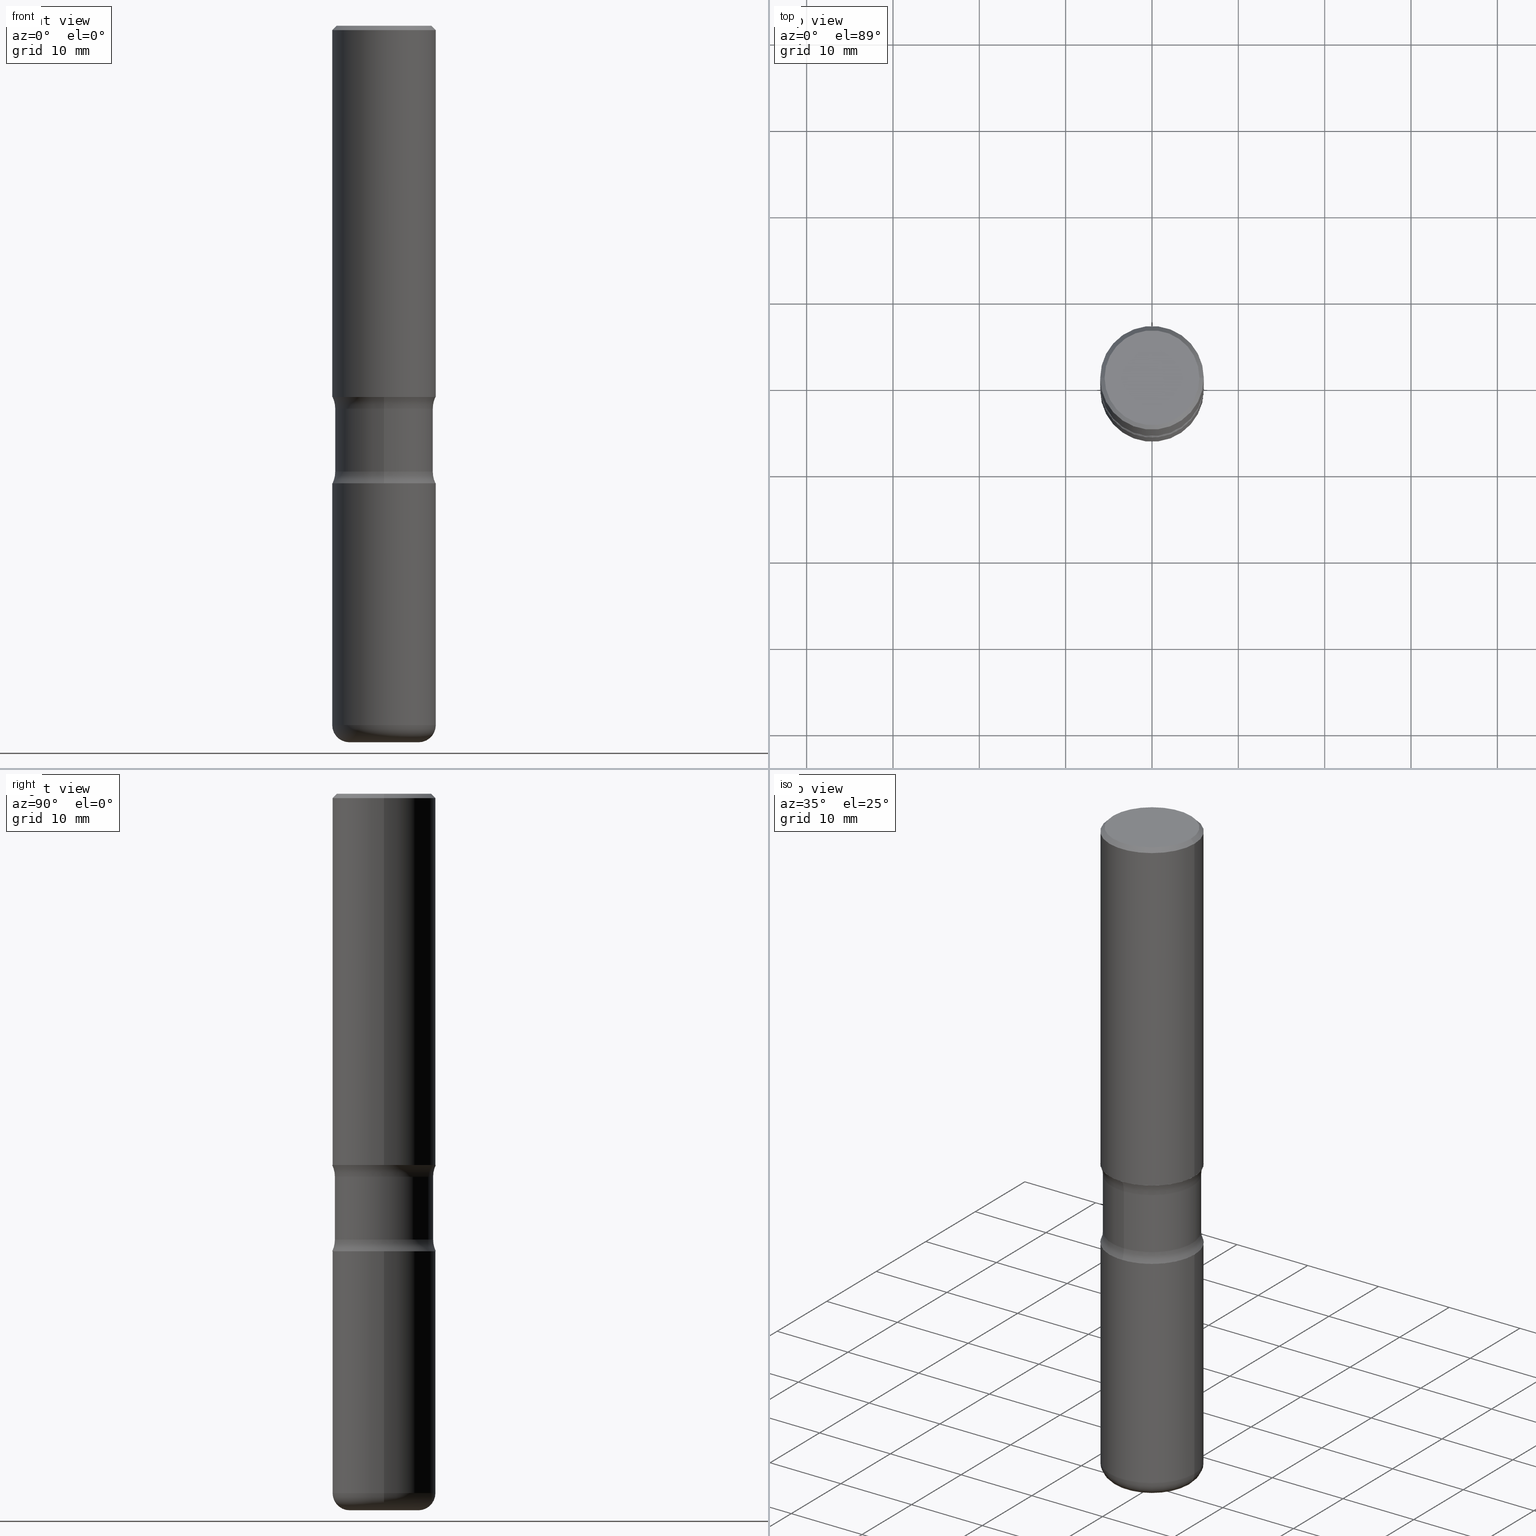
[diagram: canonical four-view strip — front | top / right | iso, engineering-drawing reading convention]
A machine part, canonical four-view strip (front | top / right | iso — engineering-drawing reading convention). The complete STEP part file that produces these views, byte-faithful:
ISO-10303-21;
HEADER;
FILE_DESCRIPTION (( 'STEP AP203' ),
    '1' );
FILE_NAME ('44745.STEP',
    '2024-03-02T02:41:08',
    ( '' ),
    ( '' ),
    'SwSTEP 2.0',
    'SolidWorks 2023',
    '' );
FILE_SCHEMA (( 'CONFIG_CONTROL_DESIGN' ));
ENDSEC;

DATA;
#1 = CARTESIAN_POINT ( 'NONE',  ( -0.2362000000000004374, -1.311977250786849481E-15, -1.692899999999999627 ) ) ;
#2 = AXIS2_PLACEMENT_3D ( 'NONE', #455, #66, #150 ) ;
#3 = AXIS2_PLACEMENT_3D ( 'NONE', #71, #399, #204 ) ;
#4 = CARTESIAN_POINT ( 'NONE',  ( 7.991058417971171713E-29, -1.140911357093774644E-14, -3.267700000000000049 ) ) ;
#5 = LINE ( 'NONE', #88, #352 ) ;
#6 = ORIENTED_EDGE ( 'NONE', *, *, #546, .F. ) ;
#7 = EDGE_CURVE ( 'NONE', #211, #544, #43, .T. ) ;
#8 = CARTESIAN_POINT ( 'NONE',  ( 4.973714950416923137E-29, -7.093372145566288471E-15, -2.032737582675856913 ) ) ;
#9 = EDGE_CURVE ( 'NONE', #544, #502, #110, .T. ) ;
#10 = CIRCLE ( 'NONE', #184, 0.2362000000000002153 ) ;
#11 = VERTEX_POINT ( 'NONE', #20 ) ;
#12 = DATE_AND_TIME ( #117, #412 ) ;
#13 = EDGE_CURVE ( 'NONE', #120, #152, #276, .T. ) ;
#14 = VERTEX_POINT ( 'NONE', #336 ) ;
#15 = EDGE_LOOP ( 'NONE', ( #393, #70, #375, #444 ) ) ;
#16 = TOROIDAL_SURFACE ( 'NONE', #281, 0.3490000000000000324, 0.1250000000000000555 ) ;
#17 = AXIS2_PLACEMENT_3D ( 'NONE', #154, #543, #280 ) ;
#18 = DIRECTION ( 'NONE',  ( 2.394995749868806294E-29, -3.563761628236091094E-15, -1.000000000000000000 ) ) ;
#19 = EDGE_LOOP ( 'NONE', ( #400, #449 ) ) ;
#20 = CARTESIAN_POINT ( 'NONE',  ( -0.2162000000000000033, 1.544631344304202170E-15, -2.134256245051273683E-17 ) ) ;
#21 = CARTESIAN_POINT ( 'NONE',  ( 4.319343984834906171E-29, -6.030492183638177096E-15, -1.746762417324141614 ) ) ;
#22 = CALENDAR_DATE ( 2024, 1, 3 ) ;
#23 = ORIENTED_EDGE ( 'NONE', *, *, #535, .T. ) ;
#24 = CIRCLE ( 'NONE', #196, 0.2362000000000002153 ) ;
#25 = TOROIDAL_SURFACE ( 'NONE', #345, 0.1575000000000002232, 0.07870000000000021423 ) ;
#26 = CIRCLE ( 'NONE', #396, 0.1250000000000000000 ) ;
#27 = ADVANCED_FACE ( 'NONE', ( #506 ), #16, .F. ) ;
#28 = ADVANCED_FACE ( 'NONE', ( #187 ), #261, .T. ) ;
#29 = VERTEX_POINT ( 'NONE', #532 ) ;
#30 = CARTESIAN_POINT ( 'NONE',  ( 4.288805644831536135E-29, -6.074224824657373494E-15, -1.746762417324141614 ) ) ;
#31 = ORIENTED_EDGE ( 'NONE', *, *, #445, .F. ) ;
#32 = APPROVAL_ROLE ( '' ) ;
#33 = DIRECTION ( 'NONE',  ( -2.445468806185136877E-29, 3.491481338843145188E-15, 1.000000000000000000 ) ) ;
#34 = AXIS2_PLACEMENT_3D ( 'NONE', #136, #97, #341 ) ;
#35 = CONICAL_SURFACE ( 'NONE', #239, 0.2362000000000000210, 0.7853981633974477239 ) ;
#36 = FACE_OUTER_BOUND ( 'NONE', #217, .T. ) ;
#37 = EDGE_LOOP ( 'NONE', ( #116, #161, #156, #202 ) ) ;
#38 = CARTESIAN_POINT ( 'NONE',  ( 1.509716530915770718E-15, 0.2162000000000000033, -7.655295466831390880E-16 ) ) ;
#39 = CARTESIAN_POINT ( 'NONE',  ( 5.102715210985905155E-29, -7.285324961630105839E-15, -2.086599999999999344 ) ) ;
#40 = FACE_OUTER_BOUND ( 'NONE', #495, .T. ) ;
#41 = CARTESIAN_POINT ( 'NONE',  ( -0.2362000000000002153, 1.678301941865358169E-15, -1.161852468318209878E-29 ) ) ;
#42 = MANIFOLD_SOLID_BREP ( 'Body-Move/Copy2[2]', #318 ) ;
#43 = CIRCLE ( 'NONE', #377, 0.2362000000000002153 ) ;
#44 = DIRECTION ( 'NONE',  ( -2.445468806185136597E-29, 3.491481338843145583E-15, 1.000000000000000000 ) ) ;
#45 = CC_DESIGN_APPROVAL ( #382, ( #319 ) ) ;
#46 = EDGE_CURVE ( 'NONE', #152, #108, #57, .T. ) ;
#47 = CARTESIAN_POINT ( 'NONE',  ( 4.319343984834906171E-29, -6.030492183638177096E-15, -1.746762417324141614 ) ) ;
#48 = FACE_OUTER_BOUND ( 'NONE', #442, .T. ) ;
#49 = CARTESIAN_POINT ( 'NONE',  ( 0.1575000000000002232, -1.223415061130637979E-14, -3.188999999999999613 ) ) ;
#50 = DIRECTION ( 'NONE',  ( -2.445468806185136597E-29, 3.491481338843145583E-15, 1.000000000000000000 ) ) ;
#51 = COORDINATED_UNIVERSAL_TIME_OFFSET ( 5, 0, .BEHIND. ) ;
#52 = ORIENTED_EDGE ( 'NONE', *, *, #13, .F. ) ;
#53 = EDGE_CURVE ( 'NONE', #211, #487, #302, .T. ) ;
#54 = ORIENTED_EDGE ( 'NONE', *, *, #387, .F. ) ;
#55 = ADVANCED_FACE ( 'NONE', ( #48 ), #25, .T. ) ;
#56 = CC_DESIGN_PERSON_AND_ORGANIZATION_ASSIGNMENT ( #128, #542, ( #515 ) ) ;
#57 = CIRCLE ( 'NONE', #131, 0.2362000000000002153 ) ;
#58 = APPROVAL ( #511, 'UNSPECIFIED' ) ;
#59 = DIRECTION ( 'NONE',  ( -0.7071067811865471286, 2.468850131082252722E-15, -0.7071067811865479058 ) ) ;
#60 = DIRECTION ( 'NONE',  ( 6.982962677686265133E-15, 1.000000000000000000, -3.563761628236091094E-15 ) ) ;
#61 = DIRECTION ( 'NONE',  ( -2.445468806185136597E-29, 3.491481338843145583E-15, 1.000000000000000000 ) ) ;
#62 = PERSON_AND_ORGANIZATION_ROLE ( 'design_supplier' ) ;
#63 = ORIENTED_EDGE ( 'NONE', *, *, #401, .F. ) ;
#64 = CONICAL_SURFACE ( 'NONE', #499, 0.2362000000000000210, 0.7853981633974477239 ) ;
#65 = AXIS2_PLACEMENT_3D ( 'NONE', #529, #164, #153 ) ;
#66 = DIRECTION ( 'NONE',  ( -1.000000000000000000, 6.982962677686265922E-15, -4.883557194083112340E-29 ) ) ;
#67 = CARTESIAN_POINT ( 'NONE',  ( -1.536751551500743867E-15, -0.2240000000000115510, -3.267699999999999161 ) ) ;
#68 = CARTESIAN_POINT ( 'NONE',  ( 1.649375784469538335E-15, 0.2361999999999943312, -1.692900000000000293 ) ) ;
#69 = PERSON_AND_ORGANIZATION ( #260, #197 ) ;
#70 = ORIENTED_EDGE ( 'NONE', *, *, #53, .T. ) ;
#71 = CARTESIAN_POINT ( 'NONE',  ( 4.890937612370289799E-31, -6.982962677686315028E-17, -0.02000000000000006981 ) ) ;
#72 = ORIENTED_EDGE ( 'NONE', *, *, #292, .F. ) ;
#73 = APPROVAL_DATE_TIME ( #126, #58 ) ;
#74 = ADVANCED_FACE ( 'NONE', ( #306 ), #419, .T. ) ;
#75 = EDGE_CURVE ( 'NONE', #29, #120, #157, .T. ) ;
#76 = DIRECTION ( 'NONE',  ( 1.000000000000000000, -6.982962677686265133E-15, 0.000000000000000000 ) ) ;
#77 = ORIENTED_EDGE ( 'NONE', *, *, #13, .T. ) ;
#78 = CLOSED_SHELL ( 'NONE', ( #256, #55, #186, #364, #28, #385 ) ) ;
#79 = CIRCLE ( 'NONE', #270, 0.2362000000000004374 ) ;
#80 = DIRECTION ( 'NONE',  ( 1.000000000000000000, -6.982962677686266711E-15, 0.000000000000000000 ) ) ;
#81 = ORIENTED_EDGE ( 'NONE', *, *, #461, .T. ) ;
#82 = DIRECTION ( 'NONE',  ( 1.000000000000000000, -6.982962677686268288E-15, 4.883557194083113462E-29 ) ) ;
#83 = COORDINATED_UNIVERSAL_TIME_OFFSET ( 5, 0, .BEHIND. ) ;
#84 = DIRECTION ( 'NONE',  ( 6.982962677686265922E-15, 1.000000000000000000, -3.658724991514637697E-15 ) ) ;
#85 = CARTESIAN_POINT ( 'NONE',  ( -0.2362000000000000210, 1.579546157692633424E-15, -0.02000000000000006981 ) ) ;
#86 = ORIENTED_EDGE ( 'NONE', *, *, #292, .T. ) ;
#87 = FACE_OUTER_BOUND ( 'NONE', #95, .T. ) ;
#88 = CARTESIAN_POINT ( 'NONE',  ( 0.2362000000000002153, -1.649375784469497708E-15, 1.151752954443001069E-29 ) ) ;
#89 = AXIS2_PLACEMENT_3D ( 'NONE', #485, #467, #80 ) ;
#90 = EDGE_CURVE ( 'NONE', #330, #14, #171, .T. ) ;
#91 = AXIS2_PLACEMENT_3D ( 'NONE', #185, #513, #296 ) ;
#92 = DIRECTION ( 'NONE',  ( 2.394995749868806294E-29, -3.563761628236091094E-15, -1.000000000000000000 ) ) ;
#93 = CARTESIAN_POINT ( 'NONE',  ( 7.798600022924400186E-29, -1.113433398957079152E-14, -3.188999999999999613 ) ) ;
#94 = DIRECTION ( 'NONE',  ( 1.000000000000000000, -6.982962677686267499E-15, 0.000000000000000000 ) ) ;
#95 = EDGE_LOOP ( 'NONE', ( #425, #365 ) ) ;
#96 = DIRECTION ( 'NONE',  ( -1.000000000000000000, 6.982962677686265922E-15, -4.876176775795935793E-29 ) ) ;
#97 = DIRECTION ( 'NONE',  ( 2.394995749868806294E-29, -3.563761628236091094E-15, -1.000000000000000000 ) ) ;
#98 = EDGE_CURVE ( 'NONE', #356, #330, #147, .T. ) ;
#99 = DIRECTION ( 'NONE',  ( 2.394995749868806294E-29, -3.563761628236091094E-15, -1.000000000000000000 ) ) ;
#100 = AXIS2_PLACEMENT_3D ( 'NONE', #4, #390, #76 ) ;
#101 = CIRCLE ( 'NONE', #159, 0.2240000000000000324 ) ;
#102 = ORIENTED_EDGE ( 'NONE', *, *, #259, .F. ) ;
#103 = CYLINDRICAL_SURFACE ( 'NONE', #183, 0.2240000000000000602 ) ;
#104 = ORIENTED_EDGE ( 'NONE', *, *, #7, .T. ) ;
#105 = CARTESIAN_POINT ( 'NONE',  ( 0.2362000000000003264, -1.278370977404028805E-14, -3.188999999999999169 ) ) ;
#106 = DIRECTION ( 'NONE',  ( -2.445468806185136597E-29, 3.491481338843145583E-15, 1.000000000000000000 ) ) ;
#107 = ORIENTED_EDGE ( 'NONE', *, *, #275, .T. ) ;
#108 = VERTEX_POINT ( 'NONE', #105 ) ;
#109 = APPROVAL_STATUS ( 'not_yet_approved' ) ;
#110 = CIRCLE ( 'NONE', #395, 0.1250000000000000278 ) ;
#111 = APPROVAL_PERSON_ORGANIZATION ( #417, #555, #554 ) ;
#112 = TOROIDAL_SURFACE ( 'NONE', #490, 0.1575000000000002232, 0.07870000000000021423 ) ;
#113 = DIRECTION ( 'NONE',  ( 1.000000000000000000, -6.982962677686266711E-15, 4.876655451117825523E-29 ) ) ;
#114 = EDGE_CURVE ( 'NONE', #144, #373, #135, .T. ) ;
#115 = PERSON_AND_ORGANIZATION ( #260, #197 ) ;
#116 = ORIENTED_EDGE ( 'NONE', *, *, #551, .F. ) ;
#117 = CALENDAR_DATE ( 2024, 1, 3 ) ;
#118 = UNCERTAINTY_MEASURE_WITH_UNIT (LENGTH_MEASURE( 1.000000000000000082E-05 ), #441, 'distance_accuracy_value', 'NONE');
#119 = PLANE ( 'NONE',  #547 ) ;
#120 = VERTEX_POINT ( 'NONE', #376 ) ;
#121 = TOROIDAL_SURFACE ( 'NONE', #34, 0.3490000000000000324, 0.1250000000000000555 ) ;
#122 = DIRECTION ( 'NONE',  ( -1.000000000000000000, 6.982962677686267499E-15, 0.000000000000000000 ) ) ;
#123 = LOCAL_TIME ( 21, 41, 8.000000000000000000, #170 ) ;
#124 = APPROVAL_STATUS ( 'not_yet_approved' ) ;
#125 = ORIENTED_EDGE ( 'NONE', *, *, #142, .T. ) ;
#126 = DATE_AND_TIME ( #503, #123 ) ;
#127 = EDGE_CURVE ( 'NONE', #464, #144, #436, .T. ) ;
#128 = PERSON_AND_ORGANIZATION ( #260, #197 ) ;
#129 = DIRECTION ( 'NONE',  ( 6.982962677686265133E-15, 1.000000000000000000, -3.469747663417773847E-15 ) ) ;
#130 = ORIENTED_EDGE ( 'NONE', *, *, #468, .F. ) ;
#131 = AXIS2_PLACEMENT_3D ( 'NONE', #151, #106, #273 ) ;
#132 = APPROVAL_DATE_TIME ( #553, #382 ) ;
#133 = DIRECTION ( 'NONE',  ( -1.000000000000000000, 6.982962677686265922E-15, -4.876176775795935793E-29 ) ) ;
#134 = VECTOR ( 'NONE', #539, 39.37007874015748143 ) ;
#135 = LINE ( 'NONE', #420, #328 ) ;
#136 = CARTESIAN_POINT ( 'NONE',  ( 4.970996349593988769E-29, -7.097265336677881413E-15, -2.032737582675857357 ) ) ;
#137 = CARTESIAN_POINT ( 'NONE',  ( 4.159805384262556359E-29, -5.882272008593556915E-15, -1.692899999999999627 ) ) ;
#138 = AXIS2_PLACEMENT_3D ( 'NONE', #267, #189, #480 ) ;
#139 = CIRCLE ( 'NONE', #378, 0.2362000000000002153 ) ;
#140 = ADVANCED_FACE ( 'NONE', ( #174 ), #212, .F. ) ;
#141 = EDGE_LOOP ( 'NONE', ( #243, #316, #334, #54 ) ) ;
#142 = EDGE_CURVE ( 'NONE', #29, #108, #231, .T. ) ;
#143 = DIRECTION ( 'NONE',  ( 6.982962677686265133E-15, 1.000000000000000000, -3.563761628236091094E-15 ) ) ;
#144 = VERTEX_POINT ( 'NONE', #1 ) ;
#145 = DIRECTION ( 'NONE',  ( 6.982962677686265922E-15, 1.000000000000000000, -2.439149994343091666E-15 ) ) ;
#146 = DIRECTION ( 'NONE',  ( 2.394995749868806294E-29, -3.563761628236091094E-15, -1.000000000000000000 ) ) ;
#147 = CIRCLE ( 'NONE', #2, 0.1250000000000000000 ) ;
#148 = AXIS2_PLACEMENT_3D ( 'NONE', #158, #61, #242 ) ;
#149 = EDGE_LOOP ( 'NONE', ( #246, #104 ) ) ;
#150 = DIRECTION ( 'NONE',  ( -6.982962677686266711E-15, -1.000000000000000000, 0.000000000000000000 ) ) ;
#151 = CARTESIAN_POINT ( 'NONE',  ( 7.798600022924399065E-29, -1.113433398957078995E-14, -3.188999999999999169 ) ) ;
#152 = VERTEX_POINT ( 'NONE', #434 ) ;
#153 = DIRECTION ( 'NONE',  ( 1.000000000000000000, 0.000000000000000000, 0.000000000000000000 ) ) ;
#154 = CARTESIAN_POINT ( 'NONE',  ( 4.890937612370289799E-31, -6.982962677686315028E-17, -0.02000000000000006981 ) ) ;
#155 = CC_DESIGN_PERSON_AND_ORGANIZATION_ASSIGNMENT ( #510, #307, ( #518 ) ) ;
#156 = ORIENTED_EDGE ( 'NONE', *, *, #98, .T. ) ;
#157 = CIRCLE ( 'NONE', #100, 0.1575000000000002232 ) ;
#158 = CARTESIAN_POINT ( 'NONE',  ( 5.219257071676098903E-46, -7.451715851902235727E-32, -2.134256245050205639E-17 ) ) ;
#159 = AXIS2_PLACEMENT_3D ( 'NONE', #300, #222, #84 ) ;
#160 = EDGE_CURVE ( 'NONE', #152, #322, #384, .T. ) ;
#161 = ORIENTED_EDGE ( 'NONE', *, *, #386, .F. ) ;
#162 = CARTESIAN_POINT ( 'NONE',  ( -1.578600589287187205E-15, -0.2240000000000060554, -1.746762417324140948 ) ) ;
#163 = DIRECTION ( 'NONE',  ( 6.982962677686265922E-15, 1.000000000000000000, -3.469747663417774636E-15 ) ) ;
#164 = DIRECTION ( 'NONE',  ( 0.000000000000000000, 0.000000000000000000, 1.000000000000000000 ) ) ;
#165 = ORIENTED_EDGE ( 'NONE', *, *, #75, .T. ) ;
#166 = DIRECTION ( 'NONE',  ( 2.445468806185136597E-29, -3.491481338843145583E-15, -1.000000000000000000 ) ) ;
#167 = DIRECTION ( 'NONE',  ( 2.445468806185136597E-29, -3.491481338843145583E-15, -1.000000000000000000 ) ) ;
#168 = ADVANCED_FACE ( 'NONE', ( #340 ), #258, .T. ) ;
#169 = DIRECTION ( 'NONE',  ( -1.000000000000000000, 7.105427357600997914E-15, 0.000000000000000000 ) ) ;
#170 = COORDINATED_UNIVERSAL_TIME_OFFSET ( 5, 0, .BEHIND. ) ;
#171 = CIRCLE ( 'NONE', #454, 0.2362000000000001598 ) ;
#172 = CIRCLE ( 'NONE', #250, 0.2162000000000000033 ) ;
#173 = ADVANCED_FACE ( 'NONE', ( #191 ), #514, .F. ) ;
#174 = FACE_OUTER_BOUND ( 'NONE', #459, .T. ) ;
#175 =( LENGTH_UNIT ( ) NAMED_UNIT ( * ) SI_UNIT ( $, .METRE. ) );
#176 = ORIENTED_EDGE ( 'NONE', *, *, #461, .F. ) ;
#177 = CARTESIAN_POINT ( 'NONE',  ( 5.102715210985905155E-29, -7.285324961630105839E-15, -2.086599999999999344 ) ) ;
#178 = CARTESIAN_POINT ( 'NONE',  ( 1.564183639801773497E-15, 0.2239999999999929270, -2.032737582675857801 ) ) ;
#179 = APPROVAL_DATE_TIME ( #494, #555 ) ;
#180 = VERTEX_POINT ( 'NONE', #379 ) ;
#181 = APPLICATION_CONTEXT ( 'configuration controlled 3d designs of mechanical parts and assemblies' ) ;
#182 = CC_DESIGN_PERSON_AND_ORGANIZATION_ASSIGNMENT ( #321, #504, ( #348 ) ) ;
#183 = AXIS2_PLACEMENT_3D ( 'NONE', #305, #190, #145 ) ;
#184 = AXIS2_PLACEMENT_3D ( 'NONE', #339, #254, #472 ) ;
#185 = CARTESIAN_POINT ( 'NONE',  ( 4.139934141990816676E-29, -5.910728758527559497E-15, -1.692899999999999627 ) ) ;
#186 = ADVANCED_FACE ( 'NONE', ( #430 ), #349, .T. ) ;
#187 = FACE_OUTER_BOUND ( 'NONE', #141, .T. ) ;
#188 = DIRECTION ( 'NONE',  ( 6.982962677686265922E-15, 1.000000000000000000, -2.439149994343091666E-15 ) ) ;
#189 = DIRECTION ( 'NONE',  ( -2.438088387897960049E-29, 3.491481338843145188E-15, 1.000000000000000000 ) ) ;
#190 = DIRECTION ( 'NONE',  ( 2.394995749868806294E-29, -3.563761628236091094E-15, -1.000000000000000000 ) ) ;
#191 = FACE_OUTER_BOUND ( 'NONE', #206, .T. ) ;
#192 = AXIS2_PLACEMENT_3D ( 'NONE', #177, #471, #133 ) ;
#193 = CARTESIAN_POINT ( 'NONE',  ( 0.000000000000000000, 0.000000000000000000, 0.000000000000000000 ) ) ;
#194 = CARTESIAN_POINT ( 'NONE',  ( 0.000000000000000000, 0.000000000000000000, 0.000000000000000000 ) ) ;
#195 = COORDINATED_UNIVERSAL_TIME_OFFSET ( 5, 0, .BEHIND. ) ;
#196 = AXIS2_PLACEMENT_3D ( 'NONE', #39, #350, #525 ) ;
#197 = ORGANIZATION ( 'UNSPECIFIED', 'UNSPECIFIED', '' ) ;
#198 = ORIENTED_EDGE ( 'NONE', *, *, #98, .F. ) ;
#199 = EDGE_LOOP ( 'NONE', ( #486, #353, #355, #220 ) ) ;
#200 = DIRECTION ( 'NONE',  ( 0.7071067811865471286, -7.319954787623254468E-15, -0.7071067811865479058 ) ) ;
#201 = ADVANCED_FACE ( 'NONE', ( #221 ), #121, .F. ) ;
#202 = ORIENTED_EDGE ( 'NONE', *, *, #90, .T. ) ;
#203 = ORIENTED_EDGE ( 'NONE', *, *, #160, .T. ) ;
#204 = DIRECTION ( 'NONE',  ( 1.000000000000000000, -6.982962677686267499E-15, 0.000000000000000000 ) ) ;
#205 = AXIS2_PLACEMENT_3D ( 'NONE', #331, #469, #188 ) ;
#206 = EDGE_LOOP ( 'NONE', ( #418, #446 ) ) ;
#207 = LINE ( 'NONE', #236, #557 ) ;
#208 = EDGE_LOOP ( 'NONE', ( #347, #523 ) ) ;
#209 = APPLICATION_PROTOCOL_DEFINITION ( 'international standard', 'config_control_design', 1994, #244 ) ;
#210 = DATE_TIME_ROLE ( 'creation_date' ) ;
#211 = VERTEX_POINT ( 'NONE', #475 ) ;
#212 = TOROIDAL_SURFACE ( 'NONE', #465, 0.3489999999999999769, 0.1250000000000000000 ) ;
#213 = CIRCLE ( 'NONE', #148, 0.2162000000000000033 ) ;
#214 = CC_DESIGN_PERSON_AND_ORGANIZATION_ASSIGNMENT ( #115, #62, ( #348 ) ) ;
#215 = DIRECTION ( 'NONE',  ( -6.982962677686267499E-15, -1.000000000000000000, 0.000000000000000000 ) ) ;
#216 = DIRECTION ( 'NONE',  ( -6.982962677686265922E-15, -1.000000000000000000, 3.563761628236091094E-15 ) ) ;
#217 = EDGE_LOOP ( 'NONE', ( #536, #203, #309, #240 ) ) ;
#218 = AXIS2_PLACEMENT_3D ( 'NONE', #295, #50, #354 ) ;
#219 = CIRCLE ( 'NONE', #3, 0.2362000000000000210 ) ;
#220 = ORIENTED_EDGE ( 'NONE', *, *, #275, .F. ) ;
#221 = FACE_OUTER_BOUND ( 'NONE', #483, .T. ) ;
#222 = DIRECTION ( 'NONE',  ( 2.394995749868806294E-29, -3.563761628236091094E-15, -1.000000000000000000 ) ) ;
#223 = DIRECTION ( 'NONE',  ( 1.000000000000000000, -6.860497997771530774E-15, 4.839913701373677961E-29 ) ) ;
#224 = DIRECTION ( 'NONE',  ( -2.445468806185136597E-29, 3.491481338843145583E-15, 1.000000000000000000 ) ) ;
#225 = CARTESIAN_POINT ( 'NONE',  ( 7.798600022924400186E-29, -1.113433398957079152E-14, -3.188999999999999613 ) ) ;
#226 = ORIENTED_EDGE ( 'NONE', *, *, #90, .F. ) ;
#227 = AXIS2_PLACEMENT_3D ( 'NONE', #228, #388, #229 ) ;
#228 = CARTESIAN_POINT ( 'NONE',  ( 7.538501650988127169E-31, -2.274480841398116641E-14, -3.267699999999999605 ) ) ;
#229 = DIRECTION ( 'NONE',  ( -1.000000000000000000, 6.982962677686265922E-15, -4.876176775795935793E-29 ) ) ;
#230 = ORIENTED_EDGE ( 'NONE', *, *, #127, .T. ) ;
#231 = CIRCLE ( 'NONE', #411, 0.07870000000000021423 ) ;
#232 =( GEOMETRIC_REPRESENTATION_CONTEXT ( 3 ) GLOBAL_UNCERTAINTY_ASSIGNED_CONTEXT ( ( #118 ) ) GLOBAL_UNIT_ASSIGNED_CONTEXT ( ( #441, #383, #533 ) ) REPRESENTATION_CONTEXT ( 'NONE', 'WORKASPACE' ) );
#233 = LINE ( 'NONE', #493, #361 ) ;
#234 = EDGE_CURVE ( 'NONE', #108, #433, #5, .T. ) ;
#235 = ADVANCED_FACE ( 'NONE', ( #308 ), #103, .T. ) ;
#236 = CARTESIAN_POINT ( 'NONE',  ( 0.2362000000000000210, -1.690279253850499166E-15, -0.02000000000000006981 ) ) ;
#237 = DIRECTION ( 'NONE',  ( 6.982962677686265922E-15, 1.000000000000000000, -3.658724991514637697E-15 ) ) ;
#238 = AXIS2_PLACEMENT_3D ( 'NONE', #8, #146, #313 ) ;
#239 = AXIS2_PLACEMENT_3D ( 'NONE', #323, #166, #122 ) ;
#240 = ORIENTED_EDGE ( 'NONE', *, *, #234, .F. ) ;
#241 = DESIGN_CONTEXT ( 'detailed design', #244, 'design' ) ;
#242 = DIRECTION ( 'NONE',  ( 1.000000000000000000, -6.982962677686266711E-15, 4.876655451117825523E-29 ) ) ;
#243 = ORIENTED_EDGE ( 'NONE', *, *, #160, .F. ) ;
#244 = APPLICATION_CONTEXT ( 'configuration controlled 3d designs of mechanical parts and assemblies' ) ;
#245 = EDGE_CURVE ( 'NONE', #14, #330, #422, .T. ) ;
#246 = ORIENTED_EDGE ( 'NONE', *, *, #259, .T. ) ;
#247 = CC_DESIGN_PERSON_AND_ORGANIZATION_ASSIGNMENT ( #69, #438, ( #319 ) ) ;
#248 = AXIS2_PLACEMENT_3D ( 'NONE', #369, #545, #169 ) ;
#249 = EDGE_LOOP ( 'NONE', ( #230, #303, #63, #72 ) ) ;
#250 = AXIS2_PLACEMENT_3D ( 'NONE', #287, #501, #113 ) ;
#251 = FACE_OUTER_BOUND ( 'NONE', #149, .T. ) ;
#252 = PLANE ( 'NONE',  #91 ) ;
#253 = CALENDAR_DATE ( 2024, 1, 3 ) ;
#254 = DIRECTION ( 'NONE',  ( -2.445468806185136597E-29, 3.491481338843145583E-15, 1.000000000000000000 ) ) ;
#255 = CIRCLE ( 'NONE', #89, 0.2362000000000002153 ) ;
#256 = ADVANCED_FACE ( 'NONE', ( #36 ), #476, .T. ) ;
#257 = CC_DESIGN_APPROVAL ( #555, ( #348 ) ) ;
#258 = CYLINDRICAL_SURFACE ( 'NONE', #521, 0.2362000000000002431 ) ;
#259 = EDGE_CURVE ( 'NONE', #544, #211, #24, .T. ) ;
#260 = PERSON ( 'UNSPECIFIED', 'UNSPECIFIED', 'UNSPECIFIED', ('UNSPECIFIED'), ('UNSPECIFIED'), ('UNSPECIFIED') ) ;
#261 = CYLINDRICAL_SURFACE ( 'NONE', #218, 0.2362000000000002153 ) ;
#262 = EDGE_LOOP ( 'NONE', ( #552, #325, #86, #408 ) ) ;
#263 = SHAPE_DEFINITION_REPRESENTATION ( #366, #452 ) ;
#264 = DIRECTION ( 'NONE',  ( -6.982962677686266711E-15, -1.000000000000000000, 3.491481338843145583E-15 ) ) ;
#265 = CARTESIAN_POINT ( 'NONE',  ( -2.394313801222220614E-15, -0.3490000000000059721, -1.746762417324140282 ) ) ;
#266 = CARTESIAN_POINT ( 'NONE',  ( 0.2362000000000000210, -1.690279253850499166E-15, -0.02000000000000006981 ) ) ;
#267 = CARTESIAN_POINT ( 'NONE',  ( 4.139934141990816676E-29, -5.910728758527559497E-15, -1.692899999999999627 ) ) ;
#268 = FACE_OUTER_BOUND ( 'NONE', #372, .T. ) ;
#269 = DIRECTION ( 'NONE',  ( -2.445468806185136877E-29, 3.491481338843145188E-15, 1.000000000000000000 ) ) ;
#270 = AXIS2_PLACEMENT_3D ( 'NONE', #429, #44, #94 ) ;
#271 = FACE_OUTER_BOUND ( 'NONE', #208, .T. ) ;
#272 = CARTESIAN_POINT ( 'NONE',  ( 7.991058417971171713E-29, -1.140911357093774644E-14, -3.267700000000000049 ) ) ;
#273 = DIRECTION ( 'NONE',  ( 1.000000000000000000, -6.982962677686266711E-15, 0.000000000000000000 ) ) ;
#274 = ORIENTED_EDGE ( 'NONE', *, *, #53, .F. ) ;
#275 = EDGE_CURVE ( 'NONE', #356, #502, #528, .T. ) ;
#276 = CIRCLE ( 'NONE', #248, 0.07870000000000021423 ) ;
#277 = AXIS2_PLACEMENT_3D ( 'NONE', #38, #477, #96 ) ;
#278 = FACE_OUTER_BOUND ( 'NONE', #37, .T. ) ;
#279 = ORIENTED_EDGE ( 'NONE', *, *, #245, .T. ) ;
#280 = DIRECTION ( 'NONE',  ( 1.000000000000000000, -6.982962677686267499E-15, 0.000000000000000000 ) ) ;
#281 = AXIS2_PLACEMENT_3D ( 'NONE', #423, #301, #484 ) ;
#282 = CARTESIAN_POINT ( 'NONE',  ( 5.102715210985905155E-29, -7.285324961630105839E-15, -2.086599999999999344 ) ) ;
#283 = CIRCLE ( 'NONE', #447, 0.2240000000000000324 ) ;
#284 = ORIENTED_EDGE ( 'NONE', *, *, #245, .F. ) ;
#285 = EDGE_CURVE ( 'NONE', #502, #487, #343, .T. ) ;
#286 = ORIENTED_EDGE ( 'NONE', *, *, #445, .T. ) ;
#287 = CARTESIAN_POINT ( 'NONE',  ( 5.219257071676098903E-46, -7.451715851902235727E-32, -2.134256245050205639E-17 ) ) ;
#288 = DIRECTION ( 'NONE',  ( -1.000000000000000000, 6.982962677686265922E-15, -4.883557194083112340E-29 ) ) ;
#289 = DIRECTION ( 'NONE',  ( 1.000000000000000000, -6.982962677686268288E-15, 4.883557194083113462E-29 ) ) ;
#290 = EDGE_CURVE ( 'NONE', #120, #29, #489, .T. ) ;
#291 = AXIS2_PLACEMENT_3D ( 'NONE', #421, #332, #460 ) ;
#292 = EDGE_CURVE ( 'NONE', #464, #394, #473, .T. ) ;
#293 = ORIENTED_EDGE ( 'NONE', *, *, #398, .F. ) ;
#294 = LOCAL_TIME ( 21, 41, 8.000000000000000000, #51 ) ;
#295 = CARTESIAN_POINT ( 'NONE',  ( 0.000000000000000000, 0.000000000000000000, 0.000000000000000000 ) ) ;
#296 = DIRECTION ( 'NONE',  ( 6.982962677686265922E-15, 1.000000000000000000, -3.563761628236091094E-15 ) ) ;
#297 = CALENDAR_DATE ( 2024, 1, 3 ) ;
#298 = DIRECTION ( 'NONE',  ( 2.394995749868806294E-29, -3.563761628236091094E-15, -1.000000000000000000 ) ) ;
#299 = DIRECTION ( 'NONE',  ( 1.000000000000000000, -6.982962677686265133E-15, 0.000000000000000000 ) ) ;
#300 = CARTESIAN_POINT ( 'NONE',  ( 4.973714950416923137E-29, -7.093372145566288471E-15, -2.032737582675856913 ) ) ;
#301 = DIRECTION ( 'NONE',  ( 2.394995749868806294E-29, -3.563761628236091094E-15, -1.000000000000000000 ) ) ;
#302 = CIRCLE ( 'NONE', #530, 0.1250000000000000278 ) ;
#303 = ORIENTED_EDGE ( 'NONE', *, *, #114, .T. ) ;
#304 = CC_DESIGN_SECURITY_CLASSIFICATION ( #319, ( #348 ) ) ;
#305 = CARTESIAN_POINT ( 'NONE',  ( 7.931444691155953223E-29, -1.149448382073975340E-14, -3.267699999999999605 ) ) ;
#306 = FACE_OUTER_BOUND ( 'NONE', #380, .T. ) ;
#307 = PERSON_AND_ORGANIZATION_ROLE ( 'creator' ) ;
#308 = FACE_OUTER_BOUND ( 'NONE', #199, .T. ) ;
#309 = ORIENTED_EDGE ( 'NONE', *, *, #315, .F. ) ;
#310 = DIRECTION ( 'NONE',  ( 1.000000000000000000, -6.982962677686276177E-15, 0.000000000000000000 ) ) ;
#311 = ADVANCED_FACE ( 'NONE', ( #268 ), #64, .T. ) ;
#312 = VECTOR ( 'NONE', #342, 39.37007874015748143 ) ;
#313 = DIRECTION ( 'NONE',  ( 6.982962677686265922E-15, 1.000000000000000000, -3.658724991514637697E-15 ) ) ;
#314 = ORIENTED_EDGE ( 'NONE', *, *, #9, .T. ) ;
#315 = EDGE_CURVE ( 'NONE', #433, #322, #255, .T. ) ;
#316 = ORIENTED_EDGE ( 'NONE', *, *, #46, .T. ) ;
#317 = PERSON_AND_ORGANIZATION ( #260, #197 ) ;
#318 = CLOSED_SHELL ( 'NONE', ( #492, #407, #311, #392, #173, #168 ) ) ;
#319 = SECURITY_CLASSIFICATION ( '', '', #458 ) ;
#320 = DIMENSIONAL_EXPONENTS ( 1.000000000000000000, 0.000000000000000000, 0.000000000000000000, 0.000000000000000000, 0.000000000000000000, 0.000000000000000000, 0.000000000000000000 ) ;
#321 = PERSON_AND_ORGANIZATION ( #260, #197 ) ;
#322 = VERTEX_POINT ( 'NONE', #496 ) ;
#323 = CARTESIAN_POINT ( 'NONE',  ( 4.890937612370289799E-31, -6.982962677686315028E-17, -0.02000000000000006981 ) ) ;
#324 = DATE_AND_TIME ( #253, #548 ) ;
#325 = ORIENTED_EDGE ( 'NONE', *, *, #335, .T. ) ;
#326 = DIRECTION ( 'NONE',  ( -1.000000000000000000, 6.982962677686267499E-15, 0.000000000000000000 ) ) ;
#327 = DIRECTION ( 'NONE',  ( -2.445468806185136597E-29, 3.491481338843145583E-15, 1.000000000000000000 ) ) ;
#328 = VECTOR ( 'NONE', #33, 39.37007874015748143 ) ;
#329 = APPROVAL_PERSON_ORGANIZATION ( #317, #382, #482 ) ;
#330 = VERTEX_POINT ( 'NONE', #68 ) ;
#331 = CARTESIAN_POINT ( 'NONE',  ( 7.931444691155953223E-29, -1.149448382073975340E-14, -3.267699999999999605 ) ) ;
#332 = DIRECTION ( 'NONE',  ( -2.445468806185136597E-29, 3.491481338843145583E-15, 1.000000000000000000 ) ) ;
#333 = ADVANCED_FACE ( 'NONE', ( #251 ), #119, .F. ) ;
#334 = ORIENTED_EDGE ( 'NONE', *, *, #234, .T. ) ;
#335 = EDGE_CURVE ( 'NONE', #144, #464, #79, .T. ) ;
#336 = CARTESIAN_POINT ( 'NONE',  ( -1.620449627073595044E-15, -0.2362000000000060163, -1.692899999999998739 ) ) ;
#337 = AXIS2_PLACEMENT_3D ( 'NONE', #193, #351, #381 ) ;
#338 = AXIS2_PLACEMENT_3D ( 'NONE', #512, #327, #435 ) ;
#339 = CARTESIAN_POINT ( 'NONE',  ( 5.102715210985905155E-29, -7.285324961630105839E-15, -2.086599999999999344 ) ) ;
#340 = FACE_OUTER_BOUND ( 'NONE', #262, .T. ) ;
#341 = DIRECTION ( 'NONE',  ( 6.982962677686265133E-15, 1.000000000000000000, -3.563761628236091094E-15 ) ) ;
#342 = DIRECTION ( 'NONE',  ( -2.445468806185136877E-29, 3.491481338843145188E-15, 1.000000000000000000 ) ) ;
#343 = CIRCLE ( 'NONE', #238, 0.2240000000000000324 ) ;
#344 = CC_DESIGN_DATE_AND_TIME_ASSIGNMENT ( #324, #210, ( #518 ) ) ;
#345 = AXIS2_PLACEMENT_3D ( 'NONE', #93, #224, #289 ) ;
#346 = LENGTH_MEASURE_WITH_UNIT ( LENGTH_MEASURE( 0.02539999999999999897 ), #175 );
#347 = ORIENTED_EDGE ( 'NONE', *, *, #315, .T. ) ;
#348 = PRODUCT_DEFINITION_FORMATION_WITH_SPECIFIED_SOURCE ( 'ANY', '', #515, .NOT_KNOWN. ) ;
#349 = PLANE ( 'NONE',  #227 ) ;
#350 = DIRECTION ( 'NONE',  ( 2.394995749868806294E-29, -3.563761628236091094E-15, -1.000000000000000000 ) ) ;
#351 = DIRECTION ( 'NONE',  ( -2.445468806185136597E-29, 3.491481338843145583E-15, 1.000000000000000000 ) ) ;
#352 = VECTOR ( 'NONE', #558, 39.37007874015748143 ) ;
#353 = ORIENTED_EDGE ( 'NONE', *, *, #468, .T. ) ;
#354 = DIRECTION ( 'NONE',  ( 1.000000000000000000, -6.982962677686266711E-15, 4.876176775795935793E-29 ) ) ;
#355 = ORIENTED_EDGE ( 'NONE', *, *, #285, .F. ) ;
#356 = VERTEX_POINT ( 'NONE', #520 ) ;
#357 = DATE_TIME_ROLE ( 'classification_date' ) ;
#358 = CARTESIAN_POINT ( 'NONE',  ( 0.2362000000000002153, -8.934700746099602364E-15, -2.086599999999999344 ) ) ;
#359 = ORIENTED_EDGE ( 'NONE', *, *, #46, .F. ) ;
#360 = CLOSED_SHELL ( 'NONE', ( #235, #27, #140, #516, #370, #333, #201, #74 ) ) ;
#361 = VECTOR ( 'NONE', #59, 39.37007874015748143 ) ;
#362 = DIRECTION ( 'NONE',  ( 2.394995749868806294E-29, -3.563761628236091094E-15, -1.000000000000000000 ) ) ;
#363 = LINE ( 'NONE', #67, #134 ) ;
#364 = ADVANCED_FACE ( 'NONE', ( #432 ), #112, .T. ) ;
#365 = ORIENTED_EDGE ( 'NONE', *, *, #470, .T. ) ;
#366 = PRODUCT_DEFINITION_SHAPE ( 'NONE', 'NONE',  #518 ) ;
#367 = CARTESIAN_POINT ( 'NONE',  ( 4.890937612370289799E-31, -6.982962677686315028E-17, -0.02000000000000006981 ) ) ;
#368 = PRODUCT_RELATED_PRODUCT_CATEGORY ( 'detail', '', ( #515 ) ) ;
#369 = CARTESIAN_POINT ( 'NONE',  ( -0.1575000000000002232, -1.001522918074863234E-14, -3.188999999999999613 ) ) ;
#370 = ADVANCED_FACE ( 'NONE', ( #40 ), #252, .F. ) ;
#371 = CARTESIAN_POINT ( 'NONE',  ( -1.578600589287179908E-15, -0.2240000000000071378, -2.032737582675856025 ) ) ;
#372 = EDGE_LOOP ( 'NONE', ( #176, #537, #286, #23 ) ) ;
#373 = VERTEX_POINT ( 'NONE', #85 ) ;
#374 = CYLINDRICAL_SURFACE ( 'NONE', #338, 0.2362000000000002431 ) ;
#375 = ORIENTED_EDGE ( 'NONE', *, *, #546, .T. ) ;
#376 = CARTESIAN_POINT ( 'NONE',  ( -0.1575000000000002232, -9.873020404910509617E-15, -3.267700000000000049 ) ) ;
#377 = AXIS2_PLACEMENT_3D ( 'NONE', #463, #505, #129 ) ;
#378 = AXIS2_PLACEMENT_3D ( 'NONE', #443, #405, #462 ) ;
#379 = CARTESIAN_POINT ( 'NONE',  ( 0.2162000000000000033, -1.586759460484351988E-15, -2.134256245049122805E-17 ) ) ;
#380 = EDGE_LOOP ( 'NONE', ( #130, #534, #107, #6 ) ) ;
#381 = DIRECTION ( 'NONE',  ( 1.000000000000000000, -6.982962677686266711E-15, 4.876176775795935793E-29 ) ) ;
#382 = APPROVAL ( #109, 'UNSPECIFIED' ) ;
#383 =( NAMED_UNIT ( * ) PLANE_ANGLE_UNIT ( ) SI_UNIT ( $, .RADIAN. ) );
#384 = LINE ( 'NONE', #41, #508 ) ;
#385 = ADVANCED_FACE ( 'NONE', ( #271 ), #481, .F. ) ;
#386 = EDGE_CURVE ( 'NONE', #356, #402, #283, .T. ) ;
#387 = EDGE_CURVE ( 'NONE', #322, #433, #10, .T. ) ;
#388 = DIRECTION ( 'NONE',  ( 2.438088387897960049E-29, -3.491481338843145188E-15, -1.000000000000000000 ) ) ;
#389 = DIRECTION ( 'NONE',  ( -2.445468806185136597E-29, 3.491481338843145583E-15, 1.000000000000000000 ) ) ;
#390 = DIRECTION ( 'NONE',  ( -2.445468806185136597E-29, 3.491481338843145583E-15, 1.000000000000000000 ) ) ;
#391 = DIRECTION ( 'NONE',  ( 2.394995749868806294E-29, -3.563761628236091094E-15, -1.000000000000000000 ) ) ;
#392 = ADVANCED_FACE ( 'NONE', ( #87 ), #426, .F. ) ;
#393 = ORIENTED_EDGE ( 'NONE', *, *, #7, .F. ) ;
#394 = VERTEX_POINT ( 'NONE', #266 ) ;
#395 = AXIS2_PLACEMENT_3D ( 'NONE', #406, #288, #215 ) ;
#396 = AXIS2_PLACEMENT_3D ( 'NONE', #265, #223, #507 ) ;
#397 = CARTESIAN_POINT ( 'NONE',  ( -2.394313801222215092E-15, -0.3490000000000071378, -2.032737582675855581 ) ) ;
#398 = EDGE_CURVE ( 'NONE', #402, #356, #413, .T. ) ;
#399 = DIRECTION ( 'NONE',  ( -2.445468806185136597E-29, 3.491481338843145583E-15, 1.000000000000000000 ) ) ;
#400 = ORIENTED_EDGE ( 'NONE', *, *, #75, .F. ) ;
#401 = EDGE_CURVE ( 'NONE', #394, #373, #456, .T. ) ;
#402 = VERTEX_POINT ( 'NONE', #162 ) ;
#403 = FACE_OUTER_BOUND ( 'NONE', #453, .T. ) ;
#404 = MECHANICAL_CONTEXT ( 'NONE', #181, 'mechanical' ) ;
#405 = DIRECTION ( 'NONE',  ( -2.445468806185136597E-29, 3.491481338843145583E-15, 1.000000000000000000 ) ) ;
#406 = CARTESIAN_POINT ( 'NONE',  ( 2.437053974512556244E-15, 0.3489999999999929270, -2.032737582675858690 ) ) ;
#407 = ADVANCED_FACE ( 'NONE', ( #403 ), #35, .T. ) ;
#408 = ORIENTED_EDGE ( 'NONE', *, *, #535, .F. ) ;
#409 = DIRECTION ( 'NONE',  ( 6.982962677686265922E-15, 1.000000000000000000, -3.658724991514637697E-15 ) ) ;
#410 = MANIFOLD_SOLID_BREP ( 'Body-Move/Copy2[1]', #78 ) ;
#411 = AXIS2_PLACEMENT_3D ( 'NONE', #49, #264, #310 ) ;
#412 = LOCAL_TIME ( 21, 41, 8.000000000000000000, #195 ) ;
#413 = CIRCLE ( 'NONE', #466, 0.2240000000000000324 ) ;
#414 = MANIFOLD_SOLID_BREP ( 'Body-Move/Copy2[4]', #360 ) ;
#415 = EDGE_LOOP ( 'NONE', ( #52, #517, #125, #359 ) ) ;
#416 = DIRECTION ( 'NONE',  ( -2.394995749868806294E-29, 3.563761628236091094E-15, 1.000000000000000000 ) ) ;
#417 = PERSON_AND_ORGANIZATION ( #260, #197 ) ;
#418 = ORIENTED_EDGE ( 'NONE', *, *, #127, .F. ) ;
#419 = CYLINDRICAL_SURFACE ( 'NONE', #205, 0.2240000000000000602 ) ;
#420 = CARTESIAN_POINT ( 'NONE',  ( -0.2362000000000002431, 1.678301941865358366E-15, -1.161852468318209878E-29 ) ) ;
#421 = CARTESIAN_POINT ( 'NONE',  ( 4.139934141990816676E-29, -5.910728758527559497E-15, -1.692899999999999627 ) ) ;
#422 = CIRCLE ( 'NONE', #540, 0.2362000000000001598 ) ;
#423 = CARTESIAN_POINT ( 'NONE',  ( 4.970996349593988769E-29, -7.097265336677881413E-15, -2.032737582675857357 ) ) ;
#424 = CC_DESIGN_APPROVAL ( #58, ( #518 ) ) ;
#425 = ORIENTED_EDGE ( 'NONE', *, *, #509, .T. ) ;
#426 = PLANE ( 'NONE',  #277 ) ;
#427 = DIRECTION ( 'NONE',  ( -2.445468806185136597E-29, 3.491481338843145583E-15, 1.000000000000000000 ) ) ;
#428 = DIRECTION ( 'NONE',  ( 6.860497997771532351E-15, 1.000000000000000000, 0.000000000000000000 ) ) ;
#429 = CARTESIAN_POINT ( 'NONE',  ( 4.139934141990816676E-29, -5.910728758527559497E-15, -1.692899999999999627 ) ) ;
#430 = FACE_OUTER_BOUND ( 'NONE', #19, .T. ) ;
#431 = EDGE_CURVE ( 'NONE', #108, #152, #139, .T. ) ;
#432 = FACE_OUTER_BOUND ( 'NONE', #415, .T. ) ;
#433 = VERTEX_POINT ( 'NONE', #358 ) ;
#434 = CARTESIAN_POINT ( 'NONE',  ( -0.2362000000000003264, -9.456032047705430396E-15, -3.188999999999999169 ) ) ;
#435 = DIRECTION ( 'NONE',  ( 1.000000000000000000, -6.982962677686266711E-15, 4.876176775795935793E-29 ) ) ;
#436 = CIRCLE ( 'NONE', #291, 0.2362000000000004374 ) ;
#437 = CARTESIAN_POINT ( 'NONE',  ( 1.564183639801803276E-15, 0.2239999999999885416, -3.267700000000000049 ) ) ;
#438 = PERSON_AND_ORGANIZATION_ROLE ( 'classification_officer' ) ;
#439 = CARTESIAN_POINT ( 'NONE',  ( 4.288805644831536135E-29, -6.074224824657373494E-15, -1.746762417324141614 ) ) ;
#440 = DIRECTION ( 'NONE',  ( -2.445468806185136597E-29, 3.491481338843145583E-15, 1.000000000000000000 ) ) ;
#441 =( CONVERSION_BASED_UNIT ( 'INCH', #346 ) LENGTH_UNIT ( ) NAMED_UNIT ( #320 ) );
#442 = EDGE_LOOP ( 'NONE', ( #165, #77, #498, #524 ) ) ;
#443 = CARTESIAN_POINT ( 'NONE',  ( 7.798600022924399065E-29, -1.113433398957078995E-14, -3.188999999999999169 ) ) ;
#444 = ORIENTED_EDGE ( 'NONE', *, *, #9, .F. ) ;
#445 = EDGE_CURVE ( 'NONE', #11, #373, #233, .T. ) ;
#446 = ORIENTED_EDGE ( 'NONE', *, *, #335, .F. ) ;
#447 = AXIS2_PLACEMENT_3D ( 'NONE', #30, #298, #409 ) ;
#448 = DIRECTION ( 'NONE',  ( 2.394995749868806294E-29, -3.563761628236091094E-15, -1.000000000000000000 ) ) ;
#449 = ORIENTED_EDGE ( 'NONE', *, *, #290, .F. ) ;
#450 = CARTESIAN_POINT ( 'NONE',  ( 1.649375784469548590E-15, 0.2361999999999929711, -2.086600000000000676 ) ) ;
#451 = CARTESIAN_POINT ( 'NONE',  ( 4.159805384262556359E-29, -5.882272008593556915E-15, -1.692899999999999627 ) ) ;
#452 = ADVANCED_BREP_SHAPE_REPRESENTATION ( '44745', ( #410, #42, #414, #65 ), #232 ) ;
#453 = EDGE_LOOP ( 'NONE', ( #531, #81, #559, #31 ) ) ;
#454 = AXIS2_PLACEMENT_3D ( 'NONE', #451, #18, #163 ) ;
#455 = CARTESIAN_POINT ( 'NONE',  ( 2.437053974512549538E-15, 0.3489999999999939262, -1.746762417324142946 ) ) ;
#456 = CIRCLE ( 'NONE', #17, 0.2362000000000000210 ) ;
#457 = CARTESIAN_POINT ( 'NONE',  ( 0.2362000000000004374, -7.560104542997059178E-15, -1.692899999999999627 ) ) ;
#458 = SECURITY_CLASSIFICATION_LEVEL ( 'unclassified' ) ;
#459 = EDGE_LOOP ( 'NONE', ( #293, #491, #279, #198 ) ) ;
#460 = DIRECTION ( 'NONE',  ( 1.000000000000000000, -6.982962677686267499E-15, 0.000000000000000000 ) ) ;
#461 = EDGE_CURVE ( 'NONE', #180, #394, #207, .T. ) ;
#462 = DIRECTION ( 'NONE',  ( 1.000000000000000000, -6.982962677686266711E-15, 0.000000000000000000 ) ) ;
#463 = CARTESIAN_POINT ( 'NONE',  ( 5.102715210985905155E-29, -7.285324961630105839E-15, -2.086599999999999344 ) ) ;
#464 = VERTEX_POINT ( 'NONE', #457 ) ;
#465 = AXIS2_PLACEMENT_3D ( 'NONE', #47, #99, #143 ) ;
#466 = AXIS2_PLACEMENT_3D ( 'NONE', #439, #362, #237 ) ;
#467 = DIRECTION ( 'NONE',  ( -2.445468806185136597E-29, 3.491481338843145583E-15, 1.000000000000000000 ) ) ;
#468 = EDGE_CURVE ( 'NONE', #402, #487, #363, .T. ) ;
#469 = DIRECTION ( 'NONE',  ( 2.394995749868806294E-29, -3.563761628236091094E-15, -1.000000000000000000 ) ) ;
#470 = EDGE_CURVE ( 'NONE', #180, #11, #213, .T. ) ;
#471 = DIRECTION ( 'NONE',  ( 2.438088387897960049E-29, -3.491481338843145188E-15, -1.000000000000000000 ) ) ;
#472 = DIRECTION ( 'NONE',  ( 1.000000000000000000, -6.982962677686266711E-15, 0.000000000000000000 ) ) ;
#473 = LINE ( 'NONE', #560, #312 ) ;
#474 = AXIS2_PLACEMENT_3D ( 'NONE', #21, #448, #60 ) ;
#475 = CARTESIAN_POINT ( 'NONE',  ( -1.620449627073586564E-15, -0.2362000000000075151, -2.086599999999998456 ) ) ;
#476 = CYLINDRICAL_SURFACE ( 'NONE', #337, 0.2362000000000002153 ) ;
#477 = DIRECTION ( 'NONE',  ( 2.438088387897960049E-29, -3.491481338843145188E-15, -1.000000000000000000 ) ) ;
#478 = DIRECTION ( 'NONE',  ( 6.982962677686265922E-15, 1.000000000000000000, -3.469747663417774636E-15 ) ) ;
#479 = VECTOR ( 'NONE', #391, 39.37007874015748143 ) ;
#480 = DIRECTION ( 'NONE',  ( 1.000000000000000000, -6.982962677686265922E-15, 4.876176775795935793E-29 ) ) ;
#481 = PLANE ( 'NONE',  #192 ) ;
#482 = APPROVAL_ROLE ( '' ) ;
#483 = EDGE_LOOP ( 'NONE', ( #274, #102, #314, #549 ) ) ;
#484 = DIRECTION ( 'NONE',  ( 6.982962677686265133E-15, 1.000000000000000000, -3.563761628236091094E-15 ) ) ;
#485 = CARTESIAN_POINT ( 'NONE',  ( 5.102715210985905155E-29, -7.285324961630105839E-15, -2.086599999999999344 ) ) ;
#486 = ORIENTED_EDGE ( 'NONE', *, *, #386, .T. ) ;
#487 = VERTEX_POINT ( 'NONE', #371 ) ;
#488 = FACE_OUTER_BOUND ( 'NONE', #249, .T. ) ;
#489 = CIRCLE ( 'NONE', #556, 0.1575000000000002232 ) ;
#490 = AXIS2_PLACEMENT_3D ( 'NONE', #225, #389, #82 ) ;
#491 = ORIENTED_EDGE ( 'NONE', *, *, #551, .T. ) ;
#492 = ADVANCED_FACE ( 'NONE', ( #488 ), #374, .T. ) ;
#493 = CARTESIAN_POINT ( 'NONE',  ( -0.2362000000000000210, 1.579546157692633424E-15, -0.02000000000000006981 ) ) ;
#494 = DATE_AND_TIME ( #22, #500 ) ;
#495 = EDGE_LOOP ( 'NONE', ( #226, #284 ) ) ;
#496 = CARTESIAN_POINT ( 'NONE',  ( -0.2362000000000002153, -7.531527533735089132E-15, -2.086599999999999344 ) ) ;
#497 = COORDINATED_UNIVERSAL_TIME_OFFSET ( 5, 0, .BEHIND. ) ;
#498 = ORIENTED_EDGE ( 'NONE', *, *, #431, .F. ) ;
#499 = AXIS2_PLACEMENT_3D ( 'NONE', #367, #167, #326 ) ;
#500 = LOCAL_TIME ( 21, 41, 8.000000000000000000, #497 ) ;
#501 = DIRECTION ( 'NONE',  ( -2.445468806185136597E-29, 3.491481338843145583E-15, 1.000000000000000000 ) ) ;
#502 = VERTEX_POINT ( 'NONE', #178 ) ;
#503 = CALENDAR_DATE ( 2024, 1, 3 ) ;
#504 = PERSON_AND_ORGANIZATION_ROLE ( 'creator' ) ;
#505 = DIRECTION ( 'NONE',  ( 2.394995749868806294E-29, -3.563761628236091094E-15, -1.000000000000000000 ) ) ;
#506 = FACE_OUTER_BOUND ( 'NONE', #15, .T. ) ;
#507 = DIRECTION ( 'NONE',  ( 6.860497997771529985E-15, 1.000000000000000000, 0.000000000000000000 ) ) ;
#508 = VECTOR ( 'NONE', #269, 39.37007874015748143 ) ;
#509 = EDGE_CURVE ( 'NONE', #11, #180, #172, .T. ) ;
#510 = PERSON_AND_ORGANIZATION ( #260, #197 ) ;
#511 = APPROVAL_STATUS ( 'not_yet_approved' ) ;
#512 = CARTESIAN_POINT ( 'NONE',  ( 0.000000000000000000, 0.000000000000000000, 0.000000000000000000 ) ) ;
#513 = DIRECTION ( 'NONE',  ( 2.394995749868806294E-29, -3.563761628236091094E-15, -1.000000000000000000 ) ) ;
#514 = PLANE ( 'NONE',  #138 ) ;
#515 = PRODUCT ( '44745', '44745', '', ( #404 ) ) ;
#516 = ADVANCED_FACE ( 'NONE', ( #278 ), #522, .F. ) ;
#517 = ORIENTED_EDGE ( 'NONE', *, *, #290, .T. ) ;
#518 = PRODUCT_DEFINITION ( 'UNKNOWN', '', #348, #241 ) ;
#519 = DIRECTION ( 'NONE',  ( 1.000000000000000000, -6.982962677686266711E-15, 4.876176775795935793E-29 ) ) ;
#520 = CARTESIAN_POINT ( 'NONE',  ( 1.564183639801766791E-15, 0.2239999999999939539, -1.746762417324142502 ) ) ;
#521 = AXIS2_PLACEMENT_3D ( 'NONE', #194, #427, #519 ) ;
#522 = TOROIDAL_SURFACE ( 'NONE', #474, 0.3489999999999999769, 0.1250000000000000000 ) ;
#523 = ORIENTED_EDGE ( 'NONE', *, *, #387, .T. ) ;
#524 = ORIENTED_EDGE ( 'NONE', *, *, #142, .F. ) ;
#525 = DIRECTION ( 'NONE',  ( 6.982962677686265133E-15, 1.000000000000000000, -3.469747663417773847E-15 ) ) ;
#526 = DIRECTION ( 'NONE',  ( 1.000000000000000000, -6.860497997771530774E-15, 4.839913701373677961E-29 ) ) ;
#527 = CC_DESIGN_DATE_AND_TIME_ASSIGNMENT ( #12, #357, ( #319 ) ) ;
#528 = LINE ( 'NONE', #437, #479 ) ;
#529 = CARTESIAN_POINT ( 'NONE',  ( 0.000000000000000000, 0.000000000000000000, 0.000000000000000000 ) ) ;
#530 = AXIS2_PLACEMENT_3D ( 'NONE', #397, #526, #428 ) ;
#531 = ORIENTED_EDGE ( 'NONE', *, *, #470, .F. ) ;
#532 = CARTESIAN_POINT ( 'NONE',  ( 0.1575000000000002232, -1.250893019267333471E-14, -3.267700000000000049 ) ) ;
#533 =( NAMED_UNIT ( * ) SI_UNIT ( $, .STERADIAN. ) SOLID_ANGLE_UNIT ( ) );
#534 = ORIENTED_EDGE ( 'NONE', *, *, #398, .T. ) ;
#535 = EDGE_CURVE ( 'NONE', #373, #394, #219, .T. ) ;
#536 = ORIENTED_EDGE ( 'NONE', *, *, #431, .T. ) ;
#537 = ORIENTED_EDGE ( 'NONE', *, *, #509, .F. ) ;
#538 = PERSON_AND_ORGANIZATION ( #260, #197 ) ;
#539 = DIRECTION ( 'NONE',  ( 2.394995749868806294E-29, -3.563761628236091094E-15, -1.000000000000000000 ) ) ;
#540 = AXIS2_PLACEMENT_3D ( 'NONE', #137, #92, #478 ) ;
#541 = APPROVAL_PERSON_ORGANIZATION ( #538, #58, #32 ) ;
#542 = PERSON_AND_ORGANIZATION_ROLE ( 'design_owner' ) ;
#543 = DIRECTION ( 'NONE',  ( -2.445468806185136597E-29, 3.491481338843145583E-15, 1.000000000000000000 ) ) ;
#544 = VERTEX_POINT ( 'NONE', #450 ) ;
#545 = DIRECTION ( 'NONE',  ( 7.105427357601001859E-15, 1.000000000000000000, -3.491481338843145583E-15 ) ) ;
#546 = EDGE_CURVE ( 'NONE', #487, #502, #101, .T. ) ;
#547 = AXIS2_PLACEMENT_3D ( 'NONE', #282, #416, #216 ) ;
#548 = LOCAL_TIME ( 21, 41, 8.000000000000000000, #83 ) ;
#549 = ORIENTED_EDGE ( 'NONE', *, *, #285, .T. ) ;
#550 = APPLICATION_PROTOCOL_DEFINITION ( 'international standard', 'config_control_design', 1994, #181 ) ;
#551 = EDGE_CURVE ( 'NONE', #402, #14, #26, .T. ) ;
#552 = ORIENTED_EDGE ( 'NONE', *, *, #114, .F. ) ;
#553 = DATE_AND_TIME ( #297, #294 ) ;
#554 = APPROVAL_ROLE ( '' ) ;
#555 = APPROVAL ( #124, 'UNSPECIFIED' ) ;
#556 = AXIS2_PLACEMENT_3D ( 'NONE', #272, #440, #299 ) ;
#557 = VECTOR ( 'NONE', #200, 39.37007874015748143 ) ;
#558 = DIRECTION ( 'NONE',  ( -2.445468806185136877E-29, 3.491481338843145188E-15, 1.000000000000000000 ) ) ;
#559 = ORIENTED_EDGE ( 'NONE', *, *, #401, .T. ) ;
#560 = CARTESIAN_POINT ( 'NONE',  ( 0.2362000000000002431, -1.649375784469497906E-15, 1.151752954443001209E-29 ) ) ;
ENDSEC;
END-ISO-10303-21;
